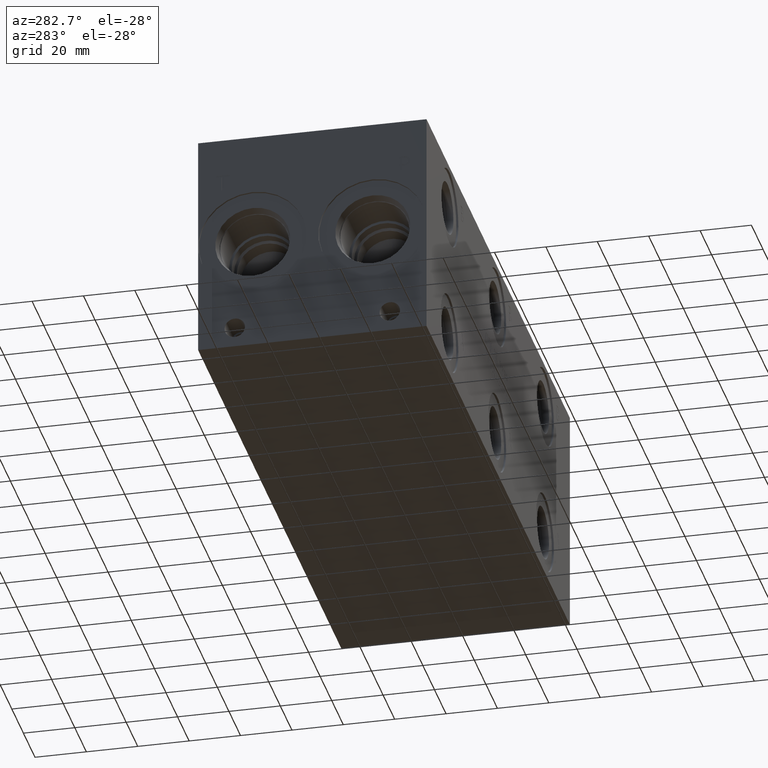
[diagram: clean part render]
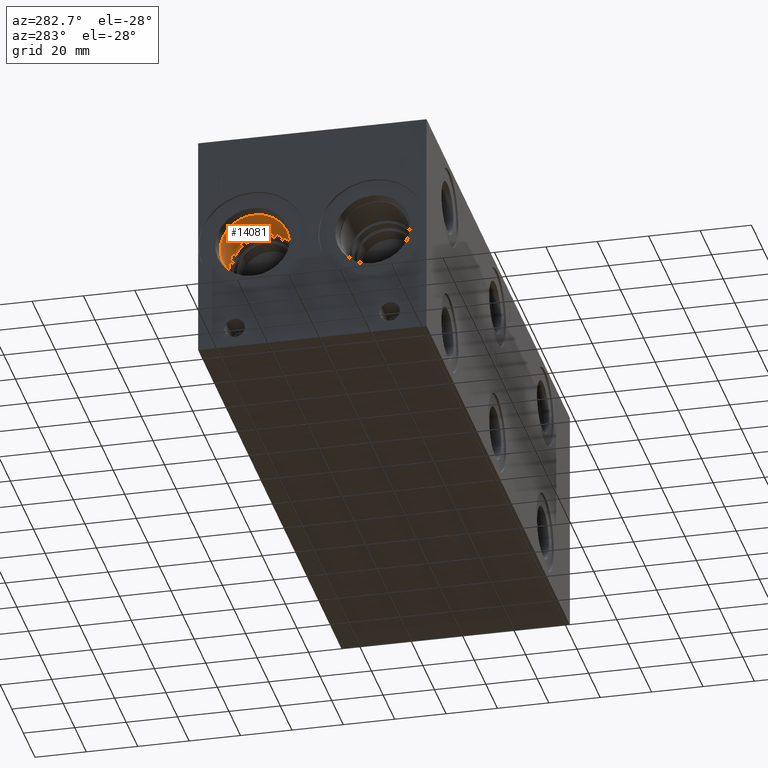
[diagram: same view with one face highlighted and labeled with its STEP entity id]
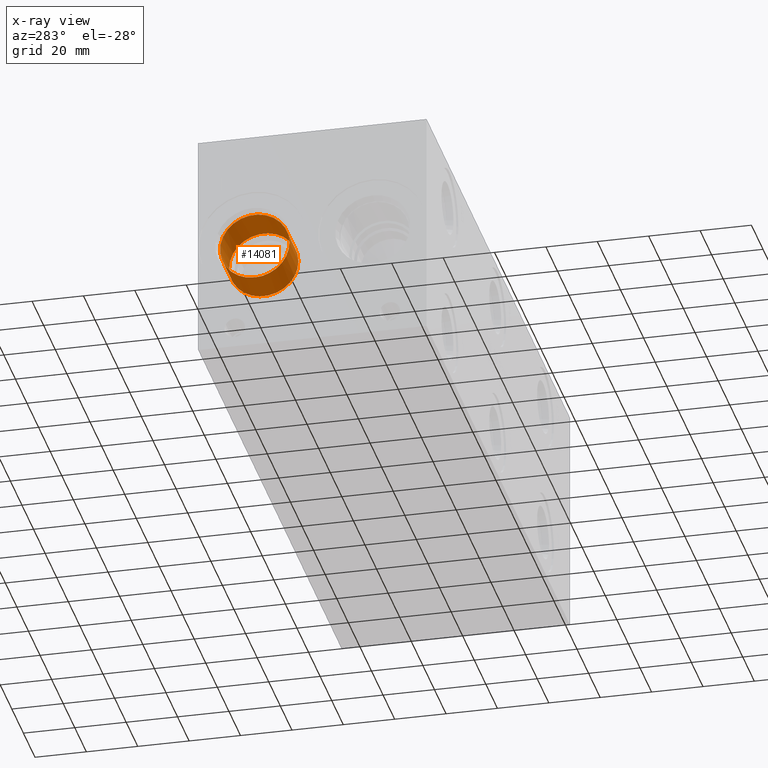
[diagram: x-ray of the same camera — body ghosted, the highlighted face saturated]
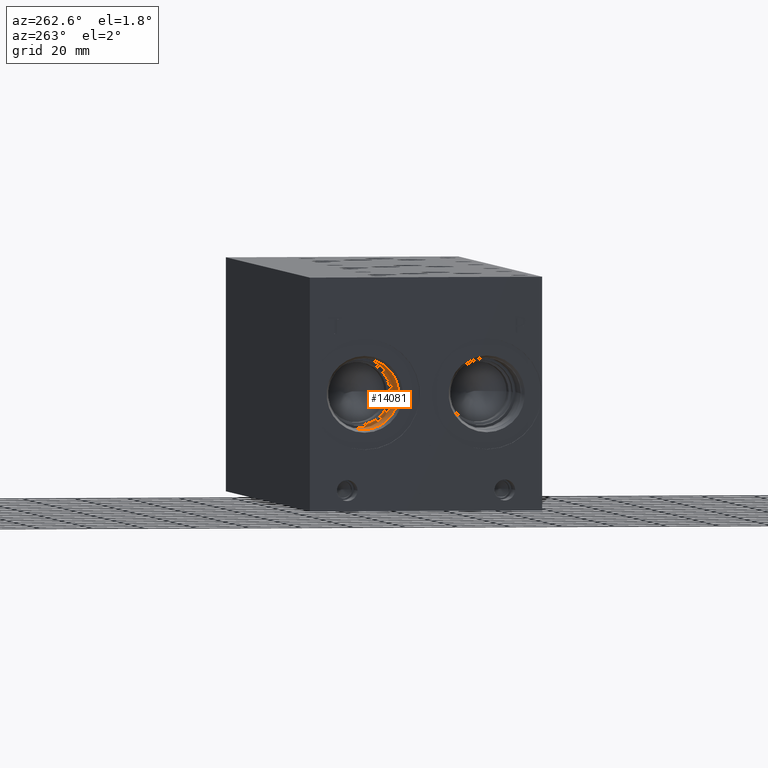
[diagram: same view with one face highlighted and labeled with its STEP entity id]
A machine part, auxiliary view. The second image highlights one B-rep face of the part: STEP entity #14081.
The next image is the same camera in x-ray: the body ghosted, the highlighted face saturated — about 0% of this face is hidden behind the body in this view.
A second angle (auxiliary view) of the same face is appended — the face is thin or edge-on in the first view.
In plain terms, the highlighted cylindrical surface (bore or boss wall) has radius 13.495 mm, axis along (-1, 0, 0).
Its self-contained STEP definition (entity closure, byte-faithful):
#110=CYLINDRICAL_SURFACE('',#14780,13.495);
#441=CIRCLE('',#14707,13.495);
#442=CIRCLE('',#14708,13.495);
#484=CIRCLE('',#14777,13.495);
#485=CIRCLE('',#14778,13.495);
#1793=FACE_OUTER_BOUND('',#2607,.T.);
#2607=EDGE_LOOP('',(#11854,#11855,#11856,#11857,#11858,#11859));
#3936=LINE('',#23911,#5191);
#5191=VECTOR('',#17378,13.495);
#6363=VERTEX_POINT('',#23764);
#6364=VERTEX_POINT('',#23766);
#6410=VERTEX_POINT('',#23904);
#6411=VERTEX_POINT('',#23905);
#8232=EDGE_CURVE('',#6364,#6363,#441,.T.);
#8233=EDGE_CURVE('',#6363,#6364,#442,.T.);
#8297=EDGE_CURVE('',#6410,#6411,#484,.T.);
#8298=EDGE_CURVE('',#6411,#6410,#485,.T.);
#8300=EDGE_CURVE('',#6364,#6411,#3936,.T.);
#11854=ORIENTED_EDGE('',*,*,#8232,.T.);
#11855=ORIENTED_EDGE('',*,*,#8233,.T.);
#11856=ORIENTED_EDGE('',*,*,#8300,.T.);
#11857=ORIENTED_EDGE('',*,*,#8297,.F.);
#11858=ORIENTED_EDGE('',*,*,#8298,.F.);
#11859=ORIENTED_EDGE('',*,*,#8300,.F.);
#14081=ADVANCED_FACE('',(#1793),#110,.F.);
#14707=AXIS2_PLACEMENT_3D('',#23767,#17208,#17209);
#14708=AXIS2_PLACEMENT_3D('',#23768,#17210,#17211);
#14777=AXIS2_PLACEMENT_3D('',#23906,#17370,#17371);
#14778=AXIS2_PLACEMENT_3D('',#23907,#17372,#17373);
#14780=AXIS2_PLACEMENT_3D('',#23910,#17376,#17377);
#17208=DIRECTION('center_axis',(-1.,0.,0.));
#17209=DIRECTION('ref_axis',(0.,1.,0.));
#17210=DIRECTION('center_axis',(-1.,0.,0.));
#17211=DIRECTION('ref_axis',(0.,1.,0.));
#17370=DIRECTION('center_axis',(-1.,0.,0.));
#17371=DIRECTION('ref_axis',(0.,1.,0.));
#17372=DIRECTION('center_axis',(-1.,0.,0.));
#17373=DIRECTION('ref_axis',(0.,1.,0.));
#17376=DIRECTION('center_axis',(-1.,0.,0.));
#17377=DIRECTION('ref_axis',(0.,1.,0.));
#17378=DIRECTION('',(1.,0.,0.));
#23764=CARTESIAN_POINT('',(4.28500000000001,67.818,30.955));
#23766=CARTESIAN_POINT('',(4.285,54.323,44.45));
#23767=CARTESIAN_POINT('Origin',(4.285,67.818,44.45));
#23768=CARTESIAN_POINT('Origin',(4.285,67.818,44.45));
#23904=CARTESIAN_POINT('',(19.8374,81.313,44.45));
#23905=CARTESIAN_POINT('',(19.8374,54.323,44.45));
#23906=CARTESIAN_POINT('Origin',(19.8374,67.818,44.45));
#23907=CARTESIAN_POINT('Origin',(19.8374,67.818,44.45));
#23910=CARTESIAN_POINT('Origin',(9.9187,67.818,44.45));
#23911=CARTESIAN_POINT('',(9.9187,54.323,44.45));